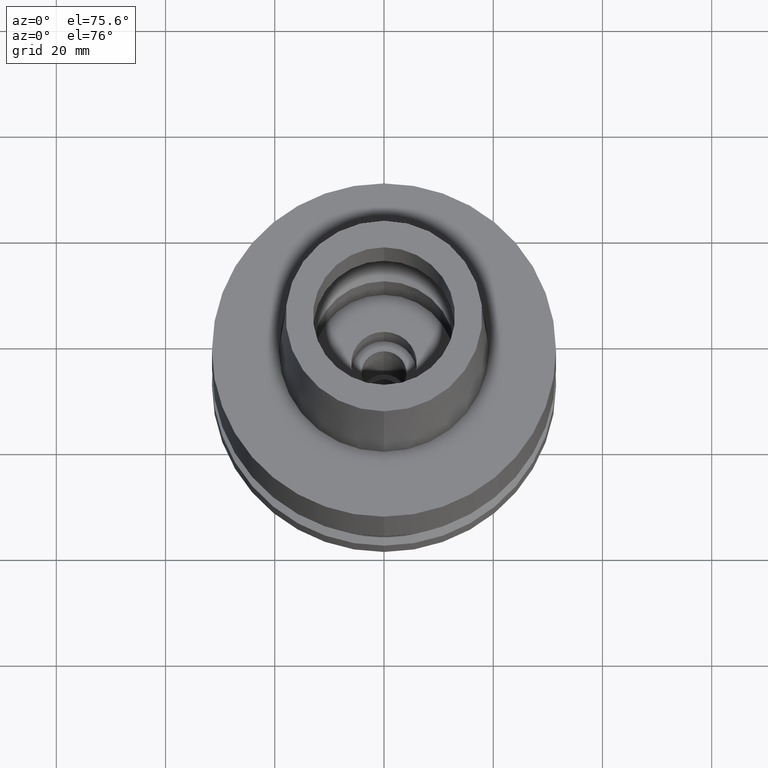
[diagram: clean part render]
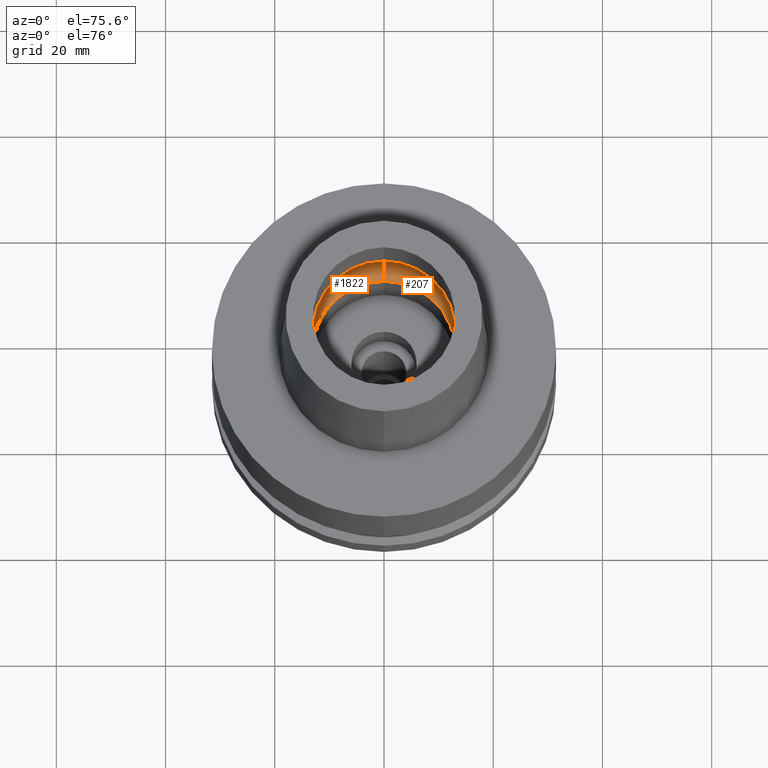
[diagram: same view with one multi-face feature highlighted, each face labeled with its STEP entity id]
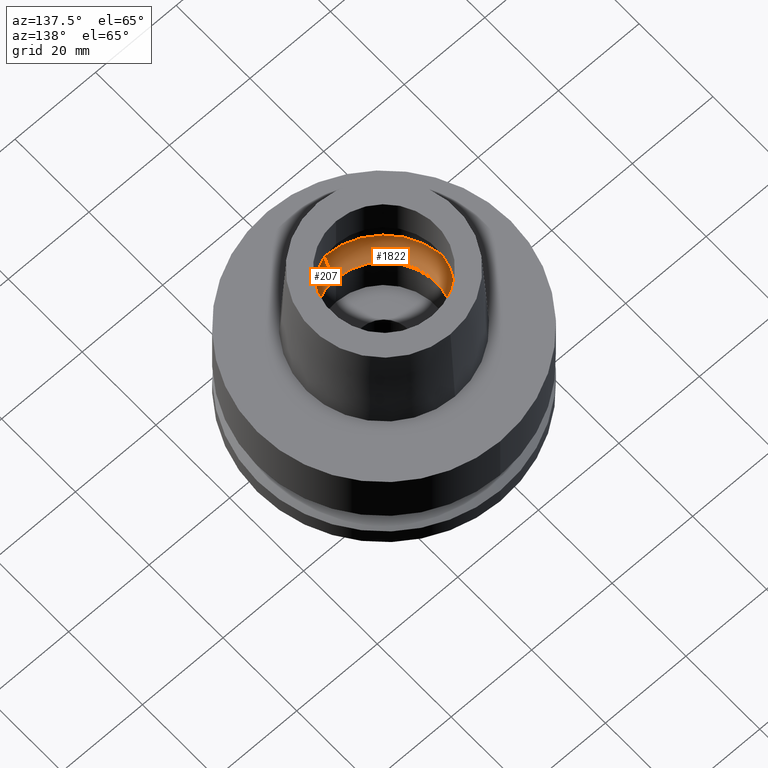
[diagram: same view with one multi-face feature highlighted, each face labeled with its STEP entity id]
A machine part, auxiliary view. The highlighted faces form ONE feature: a constant-radius fillet chain: 2 tangent blend faces with common blend radius 6 mm. The faces share edges in the B-rep.
A second angle (auxiliary view) of the same feature is appended — it is thin or edge-on in the first view.
Their STEP definitions:
[1] entity #207 (Torus):
#42 = EDGE_CURVE ( 'NONE', #224, #306, #1148, .T. ) ;
#81 = DIRECTION ( 'NONE',  ( 0.0000000000000000000, 1.000000000000000000, 0.0000000000000000000 ) ) ;
#147 = AXIS2_PLACEMENT_3D ( 'NONE', #2005, #2466, #607 ) ;
#182 = EDGE_CURVE ( 'NONE', #921, #306, #1932, .T. ) ;
#207 = ADVANCED_FACE ( 'NONE', ( #1430 ), #1318, .F. ) ;
#209 = AXIS2_PLACEMENT_3D ( 'NONE', #2481, #1434, #401 ) ;
#224 = VERTEX_POINT ( 'NONE', #2259 ) ;
#306 = VERTEX_POINT ( 'NONE', #2313 ) ;
#326 = AXIS2_PLACEMENT_3D ( 'NONE', #1316, #2377, #81 ) ;
#401 = DIRECTION ( 'NONE',  ( 0.0000000000000000000, -1.000000000000000000, 0.0000000000000000000 ) ) ;
#607 = DIRECTION ( 'NONE',  ( 0.0000000000000000000, -1.000000000000000000, 0.0000000000000000000 ) ) ;
#921 = VERTEX_POINT ( 'NONE', #2499 ) ;
#1045 = CARTESIAN_POINT ( 'NONE',  ( 0.0000000000000000000, 13.00000000000000000, 0.04984757729336999899 ) ) ;
#1116 = ORIENTED_EDGE ( 'NONE', *, *, #42, .F. ) ;
#1148 = CIRCLE ( 'NONE', #326, 16.00000000000000000 ) ;
#1198 = DIRECTION ( 'NONE',  ( 0.0000000000000000000, -0.5000000000000169864, -0.8660254037844289376 ) ) ;
#1212 = ORIENTED_EDGE ( 'NONE', *, *, #182, .T. ) ;
#1316 = CARTESIAN_POINT ( 'NONE',  ( 0.0000000000000000000, 1.288891770231000090E-14, 5.245999999999999552 ) ) ;
#1318 = TOROIDAL_SURFACE ( 'NONE', #147, 10.00000000000000000, 6.000000000000000000 ) ;
#1376 = EDGE_CURVE ( 'NONE', #2659, #224, #1781, .T. ) ;
#1419 = CARTESIAN_POINT ( 'NONE',  ( 0.0000000000000000000, -10.00000000000000000, 5.245999999999999552 ) ) ;
#1430 = FACE_OUTER_BOUND ( 'NONE', #2594, .T. ) ;
#1434 = DIRECTION ( 'NONE',  ( 0.0000000000000000000, 0.0000000000000000000, 1.000000000000000000 ) ) ;
#1445 = DIRECTION ( 'NONE',  ( 0.0000000000000000000, 0.5000000000000169864, -0.8660254037844289376 ) ) ;
#1446 = EDGE_CURVE ( 'NONE', #921, #2659, #2381, .T. ) ;
#1575 = DIRECTION ( 'NONE',  ( 1.000000000000000000, 0.0000000000000000000, 0.0000000000000000000 ) ) ;
#1699 = ORIENTED_EDGE ( 'NONE', *, *, #1376, .F. ) ;
#1766 = ORIENTED_EDGE ( 'NONE', *, *, #1446, .F. ) ;
#1781 = CIRCLE ( 'NONE', #1899, 6.000000000000000000 ) ;
#1899 = AXIS2_PLACEMENT_3D ( 'NONE', #2650, #1575, #1445 ) ;
#1932 = CIRCLE ( 'NONE', #2493, 6.000000000000000000 ) ;
#2005 = CARTESIAN_POINT ( 'NONE',  ( 0.0000000000000000000, 1.288891770231000090E-14, 5.245999999999999552 ) ) ;
#2042 = DIRECTION ( 'NONE',  ( -1.000000000000000000, 0.0000000000000000000, 0.0000000000000000000 ) ) ;
#2259 = CARTESIAN_POINT ( 'NONE',  ( 0.0000000000000000000, 16.00000000000000000, 5.245999999999999552 ) ) ;
#2313 = CARTESIAN_POINT ( 'NONE',  ( 0.0000000000000000000, -16.00000000000000000, 5.245999999999999552 ) ) ;
#2377 = DIRECTION ( 'NONE',  ( 0.0000000000000000000, 0.0000000000000000000, -1.000000000000000000 ) ) ;
#2381 = CIRCLE ( 'NONE', #209, 13.00000000000000000 ) ;
#2466 = DIRECTION ( 'NONE',  ( 0.0000000000000000000, 0.0000000000000000000, -1.000000000000000000 ) ) ;
#2481 = CARTESIAN_POINT ( 'NONE',  ( 0.0000000000000000000, 1.288891770231000090E-14, 0.04984757729336999899 ) ) ;
#2493 = AXIS2_PLACEMENT_3D ( 'NONE', #1419, #2042, #1198 ) ;
#2499 = CARTESIAN_POINT ( 'NONE',  ( 0.0000000000000000000, -13.00000000000000000, 0.04984757729336999899 ) ) ;
#2594 = EDGE_LOOP ( 'NONE', ( #1766, #1212, #1116, #1699 ) ) ;
#2650 = CARTESIAN_POINT ( 'NONE',  ( 0.0000000000000000000, 10.00000000000000000, 5.245999999999999552 ) ) ;
#2659 = VERTEX_POINT ( 'NONE', #1045 ) ;
[2] entity #1822 (Torus):
#69 = CARTESIAN_POINT ( 'NONE',  ( 0.0000000000000000000, 1.288891770231000090E-14, 5.245999999999999552 ) ) ;
#134 = CIRCLE ( 'NONE', #869, 13.00000000000000000 ) ;
#182 = EDGE_CURVE ( 'NONE', #921, #306, #1932, .T. ) ;
#224 = VERTEX_POINT ( 'NONE', #2259 ) ;
#306 = VERTEX_POINT ( 'NONE', #2313 ) ;
#448 = DIRECTION ( 'NONE',  ( 0.0000000000000000000, 0.0000000000000000000, -1.000000000000000000 ) ) ;
#658 = AXIS2_PLACEMENT_3D ( 'NONE', #1718, #448, #1512 ) ;
#694 = EDGE_CURVE ( 'NONE', #306, #224, #1924, .T. ) ;
#869 = AXIS2_PLACEMENT_3D ( 'NONE', #1343, #2357, #2173 ) ;
#902 = DIRECTION ( 'NONE',  ( 0.0000000000000000000, 0.0000000000000000000, -1.000000000000000000 ) ) ;
#921 = VERTEX_POINT ( 'NONE', #2499 ) ;
#1045 = CARTESIAN_POINT ( 'NONE',  ( 0.0000000000000000000, 13.00000000000000000, 0.04984757729336999899 ) ) ;
#1135 = TOROIDAL_SURFACE ( 'NONE', #658, 10.00000000000000000, 6.000000000000000000 ) ;
#1153 = EDGE_CURVE ( 'NONE', #2659, #921, #134, .T. ) ;
#1198 = DIRECTION ( 'NONE',  ( 0.0000000000000000000, -0.5000000000000169864, -0.8660254037844289376 ) ) ;
#1343 = CARTESIAN_POINT ( 'NONE',  ( 0.0000000000000000000, 1.288891770231000090E-14, 0.04984757729336999899 ) ) ;
#1376 = EDGE_CURVE ( 'NONE', #2659, #224, #1781, .T. ) ;
#1419 = CARTESIAN_POINT ( 'NONE',  ( 0.0000000000000000000, -10.00000000000000000, 5.245999999999999552 ) ) ;
#1445 = DIRECTION ( 'NONE',  ( 0.0000000000000000000, 0.5000000000000169864, -0.8660254037844289376 ) ) ;
#1449 = ORIENTED_EDGE ( 'NONE', *, *, #1376, .T. ) ;
#1470 = FACE_OUTER_BOUND ( 'NONE', #2314, .T. ) ;
#1512 = DIRECTION ( 'NONE',  ( 0.0000000000000000000, -1.000000000000000000, 0.0000000000000000000 ) ) ;
#1515 = ORIENTED_EDGE ( 'NONE', *, *, #182, .F. ) ;
#1522 = ORIENTED_EDGE ( 'NONE', *, *, #694, .F. ) ;
#1575 = DIRECTION ( 'NONE',  ( 1.000000000000000000, 0.0000000000000000000, 0.0000000000000000000 ) ) ;
#1718 = CARTESIAN_POINT ( 'NONE',  ( 0.0000000000000000000, 1.288891770231000090E-14, 5.245999999999999552 ) ) ;
#1731 = DIRECTION ( 'NONE',  ( 0.0000000000000000000, -1.000000000000000000, 0.0000000000000000000 ) ) ;
#1781 = CIRCLE ( 'NONE', #1899, 6.000000000000000000 ) ;
#1822 = ADVANCED_FACE ( 'NONE', ( #1470 ), #1135, .F. ) ;
#1899 = AXIS2_PLACEMENT_3D ( 'NONE', #2650, #1575, #1445 ) ;
#1922 = AXIS2_PLACEMENT_3D ( 'NONE', #69, #902, #1731 ) ;
#1924 = CIRCLE ( 'NONE', #1922, 16.00000000000000000 ) ;
#1932 = CIRCLE ( 'NONE', #2493, 6.000000000000000000 ) ;
#2036 = ORIENTED_EDGE ( 'NONE', *, *, #1153, .F. ) ;
#2042 = DIRECTION ( 'NONE',  ( -1.000000000000000000, 0.0000000000000000000, 0.0000000000000000000 ) ) ;
#2173 = DIRECTION ( 'NONE',  ( 0.0000000000000000000, 1.000000000000000000, 0.0000000000000000000 ) ) ;
#2259 = CARTESIAN_POINT ( 'NONE',  ( 0.0000000000000000000, 16.00000000000000000, 5.245999999999999552 ) ) ;
#2313 = CARTESIAN_POINT ( 'NONE',  ( 0.0000000000000000000, -16.00000000000000000, 5.245999999999999552 ) ) ;
#2314 = EDGE_LOOP ( 'NONE', ( #1522, #1515, #2036, #1449 ) ) ;
#2357 = DIRECTION ( 'NONE',  ( 0.0000000000000000000, 0.0000000000000000000, 1.000000000000000000 ) ) ;
#2493 = AXIS2_PLACEMENT_3D ( 'NONE', #1419, #2042, #1198 ) ;
#2499 = CARTESIAN_POINT ( 'NONE',  ( 0.0000000000000000000, -13.00000000000000000, 0.04984757729336999899 ) ) ;
#2650 = CARTESIAN_POINT ( 'NONE',  ( 0.0000000000000000000, 10.00000000000000000, 5.245999999999999552 ) ) ;
#2659 = VERTEX_POINT ( 'NONE', #1045 ) ;